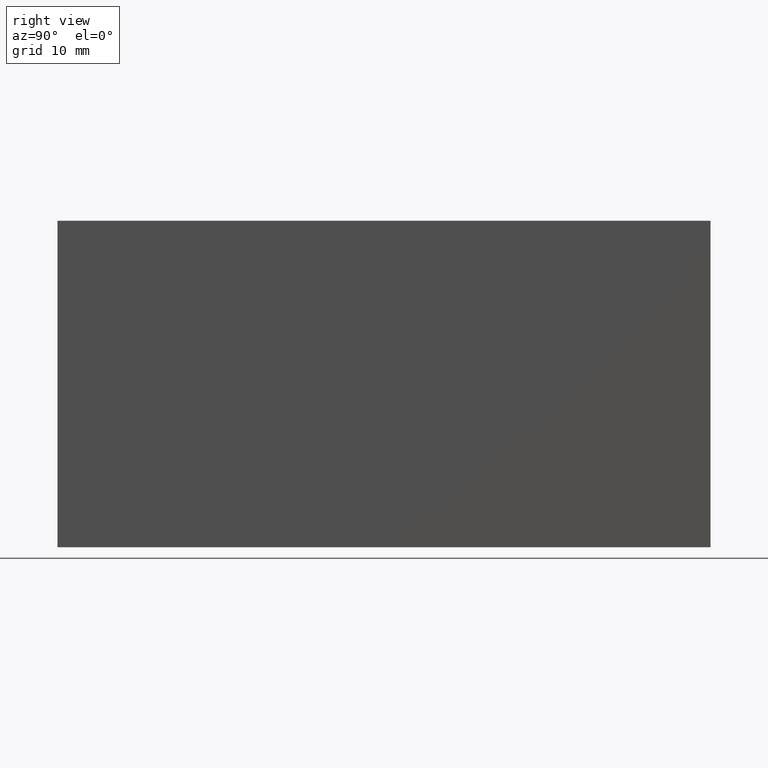
[diagram: clean part render]
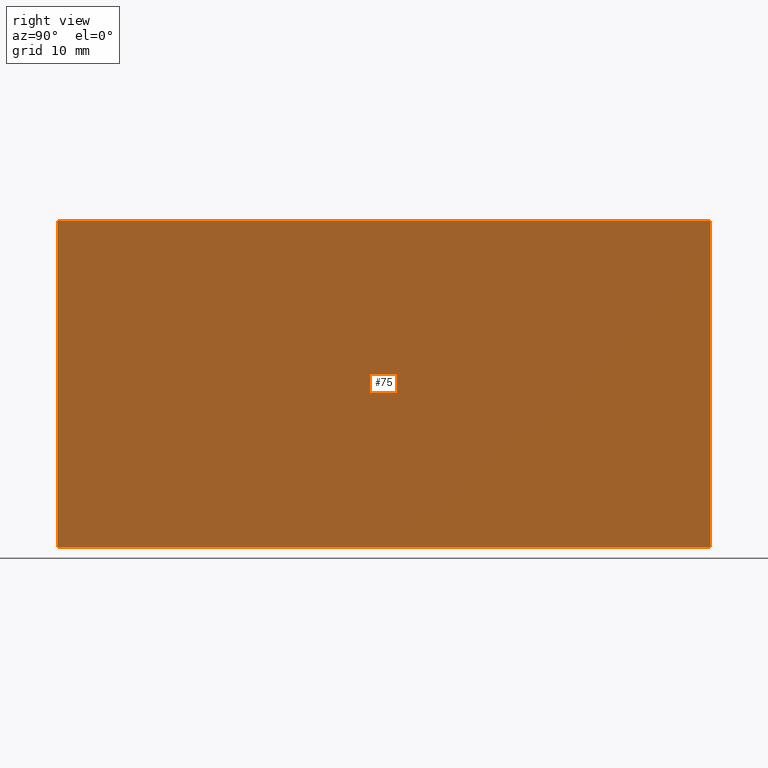
[diagram: same view with one face highlighted and labeled with its STEP entity id]
A machine part, right view. The second image highlights one B-rep face of the part: STEP entity #75.
In plain terms, the highlighted planar face has unit normal (-1, 0, 0).
Its self-contained STEP definition (entity closure, byte-faithful):
#10 = EDGE_CURVE ( 'NONE', #103, #175, #156, .T. ) ;
#11 = CARTESIAN_POINT ( 'NONE',  ( -94.94479566514876000, 60.00000000000000000, -15.00000000000000400 ) ) ;
#18 = CARTESIAN_POINT ( 'NONE',  ( -94.94479566514874600, 60.00000000000000000, 15.00000000000000000 ) ) ;
#25 = LINE ( 'NONE', #97, #114 ) ;
#37 = LINE ( 'NONE', #136, #48 ) ;
#41 = CARTESIAN_POINT ( 'NONE',  ( -94.94479566514874600, 0.0000000000000000000, 15.00000000000000000 ) ) ;
#43 = DIRECTION ( 'NONE',  ( -4.625929269271485900E-016, -0.0000000000000000000, -1.000000000000000000 ) ) ;
#48 = VECTOR ( 'NONE', #185, 1000.000000000000000 ) ;
#50 = DIRECTION ( 'NONE',  ( -1.000000000000000000, 0.0000000000000000000, 4.625929269271485900E-016 ) ) ;
#51 = ORIENTED_EDGE ( 'NONE', *, *, #111, .T. ) ;
#75 = ADVANCED_FACE ( 'NONE', ( #112 ), #122, .F. ) ;
#76 = DIRECTION ( 'NONE',  ( 4.625929269271485900E-016, 0.0000000000000000000, 1.000000000000000000 ) ) ;
#83 = AXIS2_PLACEMENT_3D ( 'NONE', #131, #50, #76 ) ;
#84 = ORIENTED_EDGE ( 'NONE', *, *, #10, .F. ) ;
#94 = VERTEX_POINT ( 'NONE', #18 ) ;
#97 = CARTESIAN_POINT ( 'NONE',  ( -94.94479566514876000, 0.0000000000000000000, -15.00000000000000400 ) ) ;
#101 = VECTOR ( 'NONE', #203, 1000.000000000000000 ) ;
#103 = VERTEX_POINT ( 'NONE', #11 ) ;
#106 = CARTESIAN_POINT ( 'NONE',  ( -94.94479566514876000, 0.0000000000000000000, -15.00000000000000400 ) ) ;
#107 = EDGE_CURVE ( 'NONE', #94, #103, #37, .T. ) ;
#111 = EDGE_CURVE ( 'NONE', #176, #175, #25, .T. ) ;
#112 = FACE_OUTER_BOUND ( 'NONE', #160, .T. ) ;
#114 = VECTOR ( 'NONE', #43, 1000.000000000000000 ) ;
#122 = PLANE ( 'NONE',  #83 ) ;
#128 = CARTESIAN_POINT ( 'NONE',  ( -94.94479566514874600, 60.00000000000000000, 15.00000000000000000 ) ) ;
#131 = CARTESIAN_POINT ( 'NONE',  ( -94.94479566514876000, 60.00000000000000000, -15.00000000000000400 ) ) ;
#133 = CARTESIAN_POINT ( 'NONE',  ( -94.94479566514876000, 60.00000000000000000, -15.00000000000000400 ) ) ;
#136 = CARTESIAN_POINT ( 'NONE',  ( -94.94479566514876000, 60.00000000000000000, -15.00000000000000400 ) ) ;
#156 = LINE ( 'NONE', #133, #101 ) ;
#160 = EDGE_LOOP ( 'NONE', ( #51, #84, #200, #188 ) ) ;
#174 = EDGE_CURVE ( 'NONE', #94, #176, #177, .T. ) ;
#175 = VERTEX_POINT ( 'NONE', #106 ) ;
#176 = VERTEX_POINT ( 'NONE', #41 ) ;
#177 = LINE ( 'NONE', #128, #204 ) ;
#182 = DIRECTION ( 'NONE',  ( -0.0000000000000000000, -1.000000000000000000, -0.0000000000000000000 ) ) ;
#185 = DIRECTION ( 'NONE',  ( -4.625929269271485900E-016, -0.0000000000000000000, -1.000000000000000000 ) ) ;
#188 = ORIENTED_EDGE ( 'NONE', *, *, #174, .T. ) ;
#200 = ORIENTED_EDGE ( 'NONE', *, *, #107, .F. ) ;
#203 = DIRECTION ( 'NONE',  ( -0.0000000000000000000, -1.000000000000000000, -0.0000000000000000000 ) ) ;
#204 = VECTOR ( 'NONE', #182, 1000.000000000000000 ) ;